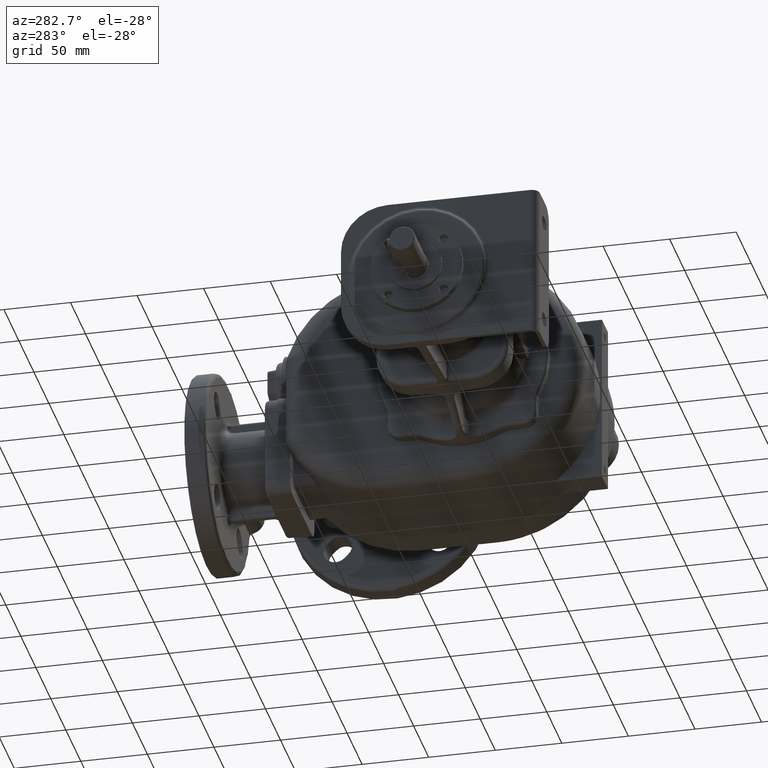
[diagram: clean part render]
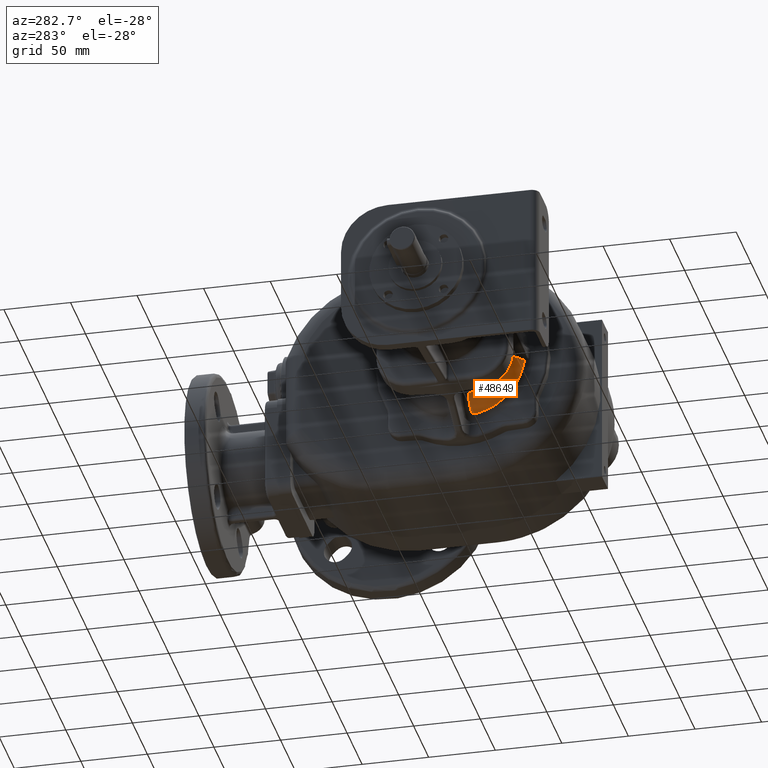
[diagram: same view with one face highlighted and labeled with its STEP entity id]
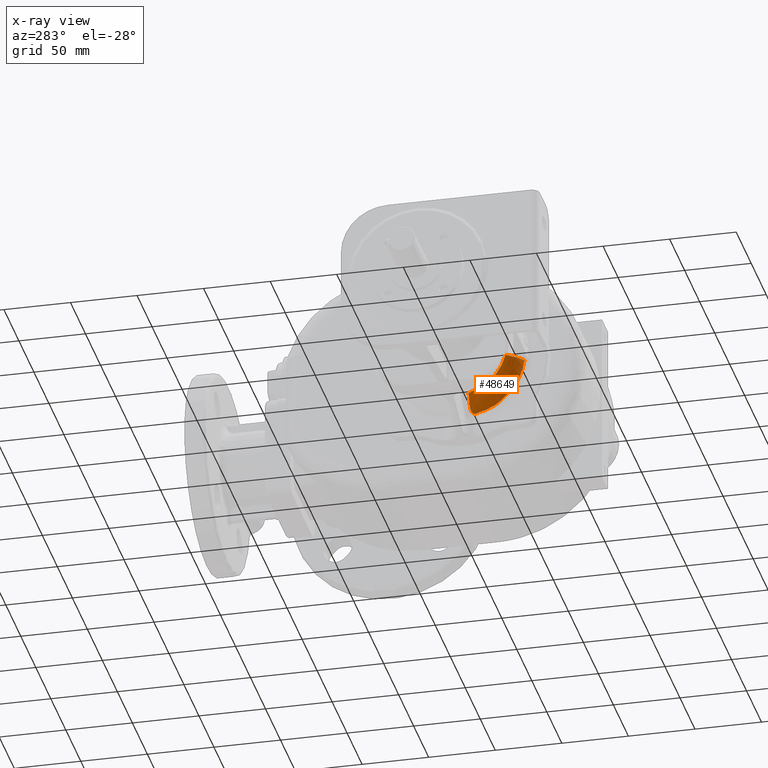
[diagram: x-ray of the same camera — body ghosted, the highlighted face saturated]
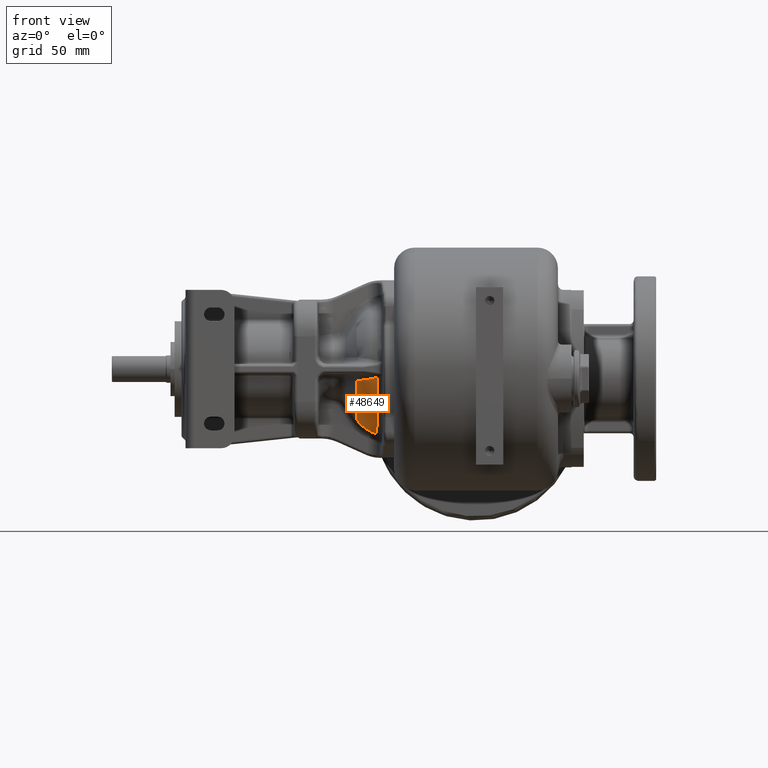
[diagram: same view with one face highlighted and labeled with its STEP entity id]
A machine part, auxiliary view. The second image highlights one B-rep face of the part: STEP entity #48649.
The next image is the same camera in x-ray: the body ghosted, the highlighted face saturated — about 0% of this face is hidden behind the body in this view.
A second angle (front view) of the same face is appended — the face is thin or edge-on in the first view.
In plain terms, the highlighted face is a SurfaceOfRevolution surface.
Its self-contained STEP definition (entity closure, byte-faithful):
#16620=CARTESIAN_POINT('',(-9.753337027059E1,5.279535384912E1,
-8.561780216402E0));
#16631=CARTESIAN_POINT('',(-9.753339102798E1,9.E1,0.E0));
#16632=DIRECTION('',(1.E0,0.E0,0.E0));
#16633=DIRECTION('',(0.E0,-9.745293702970E-1,-2.242599082060E-1));
#16634=AXIS2_PLACEMENT_3D('',#16631,#16632,#16633);
#16653=CARTESIAN_POINT('',(-8.240648749046E1,4.188277130022E1,
-6.272437762217E0));
#16654=CARTESIAN_POINT('',(-8.278824821312E1,4.201941767986E1,
-6.354853286630E0));
#16655=CARTESIAN_POINT('',(-8.353397313513E1,4.229723132439E1,
-6.508450347368E0));
#16656=CARTESIAN_POINT('',(-8.459349114745E1,4.272352786311E1,
-6.716669602793E0));
#16657=CARTESIAN_POINT('',(-8.560787527864E1,4.316315131894E1,
-6.905870031094E0));
#16658=CARTESIAN_POINT('',(-8.658354201662E1,4.361843027517E1,
-7.078695747106E0));
#16659=CARTESIAN_POINT('',(-8.750870014157E1,4.408314349898E1,
-7.235822248015E0));
#16660=CARTESIAN_POINT('',(-8.838252261883E1,4.455448400631E1,
-7.377879699600E0));
#16661=CARTESIAN_POINT('',(-8.921653288702E1,4.503687897089E1,
-7.507946388847E0));
#16662=CARTESIAN_POINT('',(-9.001113195195E1,4.552931595685E1,
-7.627354377668E0));
#16663=CARTESIAN_POINT('',(-9.076832226161E1,4.603140779126E1,
-7.737144168651E0));
#16664=CARTESIAN_POINT('',(-9.149415625367E1,4.654586272315E1,
-7.838696832985E0));
#16665=CARTESIAN_POINT('',(-9.218806263532E1,4.707127670473E1,
-7.932679037803E0));
#16666=CARTESIAN_POINT('',(-9.284826476313E1,4.760465709951E1,
-8.019478834646E0));
#16667=CARTESIAN_POINT('',(-9.348946949329E1,4.815742299319E1,
-8.101455372868E0));
#16668=CARTESIAN_POINT('',(-9.409796536992E1,4.871808519303E1,
-8.177112478868E0));
#16669=CARTESIAN_POINT('',(-9.463954592913E1,4.925012567942E1,
-8.242855100437E0));
#16670=CARTESIAN_POINT('',(-9.511141903536E1,4.974169658331E1,
-8.298973981790E0));
#16671=CARTESIAN_POINT('',(-9.551325751669E1,5.018305728147E1,
-8.345824487718E0));
#16672=CARTESIAN_POINT('',(-9.585548844493E1,5.057703167622E1,
-8.385057176971E0));
#16673=CARTESIAN_POINT('',(-9.614596363602E1,5.092536977790E1,
-8.417426579600E0));
#16674=CARTESIAN_POINT('',(-9.640057009326E1,5.124174914248E1,
-8.445138067714E0));
#16675=CARTESIAN_POINT('',(-9.663492953903E1,5.154256490195E1,
-8.469958788852E0));
#16676=CARTESIAN_POINT('',(-9.686515287047E1,5.184755900315E1,
-8.493512895767E0));
#16677=CARTESIAN_POINT('',(-9.709381799129E1,5.216061862510E1,
-8.516537445211E0));
#16678=CARTESIAN_POINT('',(-9.731776430488E1,5.247768032867E1,
-8.538998479701E0));
#16679=CARTESIAN_POINT('',(-9.746219433563E1,5.268932395339E1,
-8.554238049824E0));
#16680=CARTESIAN_POINT('',(-9.753337027059E1,5.279535384912E1,
-8.561780216402E0));
#16682=CARTESIAN_POINT('',(-8.240649223943E1,9.E1,0.E0));
#16683=DIRECTION('',(-1.E0,0.E0,0.E0));
#16684=DIRECTION('',(0.E0,-8.661620173E-1,-4.997633037617E-1));
#16685=AXIS2_PLACEMENT_3D('',#16682,#16683,#16684);
#16687=CARTESIAN_POINT('',(-8.241088119762E1,4.838884719209E1,
-2.495966978502E1));
#16688=CARTESIAN_POINT('',(-8.240990628059E1,4.834147571371E1,
-2.488131563265E1));
#16689=CARTESIAN_POINT('',(-8.240828131381E1,4.824728981401E1,
-2.472432157308E1));
#16690=CARTESIAN_POINT('',(-8.240681763446E1,4.810767080644E1,
-2.448795839646E1));
#16691=CARTESIAN_POINT('',(-8.240649234959E1,4.801573491044E1,
-2.432986685024E1));
#16692=CARTESIAN_POINT('',(-8.240649233172E1,4.797005077876E1,
-2.425068966081E1));
#16694=CARTESIAN_POINT('',(-8.247285667231E1,5.259241664170E1,
-3.087349212103E1));
#16695=CARTESIAN_POINT('',(-8.247017927443E1,5.233523070577E1,
-3.056325857637E1));
#16696=CARTESIAN_POINT('',(-8.246460228415E1,5.182842755241E1,
-2.993629651384E1));
#16697=CARTESIAN_POINT('',(-8.245551968453E1,5.109139693621E1,
-2.897691097353E1));
#16698=CARTESIAN_POINT('',(-8.244567013749E1,5.037803835976E1,
-2.799919835276E1));
#16699=CARTESIAN_POINT('',(-8.243500316826E1,4.968880728381E1,
-2.700375336226E1));
#16700=CARTESIAN_POINT('',(-8.242347128243E1,4.902416007890E1,
-2.599120339598E1));
#16701=CARTESIAN_POINT('',(-8.241518144792E1,4.859778974903E1,
-2.530526810810E1));
#16702=CARTESIAN_POINT('',(-8.241088119762E1,4.838884719209E1,
-2.495966978502E1));
#16704=CARTESIAN_POINT('',(-8.247481188181E1,5.908444235778E1,
-3.737199101076E1));
#16705=CARTESIAN_POINT('',(-8.247747680362E1,5.874613826511E1,
-3.709099493864E1));
#16706=CARTESIAN_POINT('',(-8.248169685975E1,5.807783624213E1,
-3.652081255682E1));
#16707=CARTESIAN_POINT('',(-8.248554519074E1,5.710164555709E1,
-3.564220808523E1));
#16708=CARTESIAN_POINT('',(-8.248725697936E1,5.615023231367E1,
-3.473911765539E1));
#16709=CARTESIAN_POINT('',(-8.248702621300E1,5.522375054857E1,
-3.381172922865E1));
#16710=CARTESIAN_POINT('',(-8.248483431045E1,5.432139242427E1,
-3.285922667018E1));
#16711=CARTESIAN_POINT('',(-8.248044280068E1,5.344331809218E1,
-3.188171964115E1));
#16712=CARTESIAN_POINT('',(-8.247578115532E1,5.287334441925E1,
-3.121236439717E1));
#16713=CARTESIAN_POINT('',(-8.247285667231E1,5.259241664170E1,
-3.087349212103E1));
#16715=CARTESIAN_POINT('',(-8.243995186791E1,6.308424432643E1,
-4.036199528801E1));
#16716=CARTESIAN_POINT('',(-8.244325149823E1,6.273838276505E1,
-4.013005310834E1));
#16717=CARTESIAN_POINT('',(-8.244965141354E1,6.205263229843E1,
-3.965733917180E1));
#16718=CARTESIAN_POINT('',(-8.245865116567E1,6.104257035674E1,
-3.892223375511E1));
#16719=CARTESIAN_POINT('',(-8.246706277712E1,6.005178567309E1,
-3.816161760263E1));
#16720=CARTESIAN_POINT('',(-8.247228989850E1,5.940460100689E1,
-3.763791534723E1));
#16721=CARTESIAN_POINT('',(-8.247481188181E1,5.908444235778E1,
-3.737199101076E1));
#16723=CARTESIAN_POINT('',(-8.246986283721E1,6.419869242553E1,
-4.107174034441E1));
#16724=CARTESIAN_POINT('',(-8.246204741153E1,6.407241387446E1,
-4.099544728572E1));
#16725=CARTESIAN_POINT('',(-8.244942549709E1,6.382146652243E1,
-4.084110962633E1));
#16726=CARTESIAN_POINT('',(-8.243947228596E1,6.344982485230E1,
-4.060439036196E1));
#16727=CARTESIAN_POINT('',(-8.243880329218E1,6.320553273330E1,
-4.044333052832E1));
#16728=CARTESIAN_POINT('',(-8.243995186791E1,6.308424432643E1,
-4.036199528801E1));
#16730=CARTESIAN_POINT('',(-8.324562045778E1,7.769874610355E1,
-4.664606138933E1));
#16731=CARTESIAN_POINT('',(-8.322247908771E1,7.726667861018E1,
-4.654046724858E1));
#16732=CARTESIAN_POINT('',(-8.317602118770E1,7.640574931877E1,
-4.631741659972E1));
#16733=CARTESIAN_POINT('',(-8.310610485205E1,7.512454174400E1,
-4.594739480891E1));
#16734=CARTESIAN_POINT('',(-8.303587399401E1,7.385439444347E1,
-4.554224929375E1));
#16735=CARTESIAN_POINT('',(-8.296541139141E1,7.259606616023E1,
-4.510223367803E1));
#16736=CARTESIAN_POINT('',(-8.289476528412E1,7.135034517179E1,
-4.462762665372E1));
#16737=CARTESIAN_POINT('',(-8.282399362724E1,7.011799316983E1,
-4.411869949131E1));
#16738=CARTESIAN_POINT('',(-8.275312264832E1,6.890011197136E1,
-4.357590467413E1));
#16739=CARTESIAN_POINT('',(-8.268220126241E1,6.769782475160E1,
-4.299975420976E1));
#16740=CARTESIAN_POINT('',(-8.261129028171E1,6.651223269038E1,
-4.239080108620E1));
#16741=CARTESIAN_POINT('',(-8.254046587389E1,6.534439042304E1,
-4.174963169768E1));
#16742=CARTESIAN_POINT('',(-8.249336566798E1,6.457841342910E1,
-4.130114699990E1));
#16743=CARTESIAN_POINT('',(-8.246986283721E1,6.419869242553E1,
-4.107174034441E1));
#16745=CARTESIAN_POINT('',(-8.658996781544E1,8.106394003412E1,
-4.605096699252E1));
#16746=CARTESIAN_POINT('',(-8.653425647681E1,8.106420696144E1,
-4.607671767529E1));
#16747=CARTESIAN_POINT('',(-8.642312695272E1,8.106170727342E1,
-4.612714572851E1));
#16748=CARTESIAN_POINT('',(-8.625712475843E1,8.104903112020E1,
-4.619972117228E1));
#16749=CARTESIAN_POINT('',(-8.609250577147E1,8.102760872506E1,
-4.626899101706E1));
#16750=CARTESIAN_POINT('',(-8.592969988351E1,8.099762109624E1,
-4.633483988292E1));
#16751=CARTESIAN_POINT('',(-8.576917697851E1,8.095925312052E1,
-4.639713856101E1));
#16752=CARTESIAN_POINT('',(-8.561138261447E1,8.091267392743E1,
-4.645576914483E1));
#16753=CARTESIAN_POINT('',(-8.545656929825E1,8.085808680212E1,
-4.651070441107E1));
#16754=CARTESIAN_POINT('',(-8.530492729925E1,8.079573011762E1,
-4.656194827604E1));
#16755=CARTESIAN_POINT('',(-8.515669999544E1,8.072580970226E1,
-4.660947384409E1));
#16756=CARTESIAN_POINT('',(-8.501219252310E1,8.064855001278E1,
-4.665323149083E1));
#16757=CARTESIAN_POINT('',(-8.487168925132E1,8.056414755727E1,
-4.669317423478E1));
#16758=CARTESIAN_POINT('',(-8.473543364397E1,8.047278601645E1,
-4.672926795817E1));
#16759=CARTESIAN_POINT('',(-8.460363699167E1,8.037471535319E1,
-4.676150310306E1));
#16760=CARTESIAN_POINT('',(-8.447654039714E1,8.027016915310E1,
-4.678985218481E1));
#16761=CARTESIAN_POINT('',(-8.435441887256E1,8.015941052474E1,
-4.681427991430E1));
#16762=CARTESIAN_POINT('',(-8.423755724510E1,8.004270592930E1,
-4.683474800338E1));
#16763=CARTESIAN_POINT('',(-8.412611628687E1,7.992014506441E1,
-4.685122749637E1));
#16764=CARTESIAN_POINT('',(-8.402017520958E1,7.979180459036E1,
-4.686371380421E1));
#16765=CARTESIAN_POINT('',(-8.391984326286E1,7.965780959742E1,
-4.687219692433E1));
#16766=CARTESIAN_POINT('',(-8.382540500776E1,7.951844438448E1,
-4.687663338473E1));
#16767=CARTESIAN_POINT('',(-8.373714945645E1,7.937400869293E1,
-4.687698187338E1));
#16768=CARTESIAN_POINT('',(-8.365532121556E1,7.922470744908E1,
-4.687319582532E1));
#16769=CARTESIAN_POINT('',(-8.358015647903E1,7.907067200330E1,
-4.686521289045E1));
#16770=CARTESIAN_POINT('',(-8.351181358763E1,7.891210682277E1,
-4.685301360084E1));
#16771=CARTESIAN_POINT('',(-8.345047358128E1,7.874918917316E1,
-4.683656123328E1));
#16772=CARTESIAN_POINT('',(-8.339635238988E1,7.858208321329E1,
-4.681580028391E1));
#16773=CARTESIAN_POINT('',(-8.334973485039E1,7.841107131774E1,
-4.679067631924E1));
#16774=CARTESIAN_POINT('',(-8.331099290019E1,7.823669308352E1,
-4.676116689814E1));
#16775=CARTESIAN_POINT('',(-8.328039503033E1,7.805949450547E1,
-4.672729212930E1));
#16776=CARTESIAN_POINT('',(-8.325812193012E1,7.788003849862E1,
-4.668910819805E1));
#16777=CARTESIAN_POINT('',(-8.324882226982E1,7.775932432048E1,
-4.666088173801E1));
#16778=CARTESIAN_POINT('',(-8.324562045778E1,7.769874610355E1,
-4.664606138933E1));
#16780=CARTESIAN_POINT('',(-9.753339047591E1,8.047408518737E1,
-3.696950390604E1));
#16781=CARTESIAN_POINT('',(-9.739341855808E1,8.049491291926E1,
-3.718128015977E1));
#16782=CARTESIAN_POINT('',(-9.710872582415E1,8.053525161780E1,
-3.759763110749E1));
#16783=CARTESIAN_POINT('',(-9.666919975814E1,8.059195946320E1,
-3.819907747851E1));
#16784=CARTESIAN_POINT('',(-9.621552202854E1,8.064526643843E1,
-3.878075942265E1));
#16785=CARTESIAN_POINT('',(-9.574651968938E1,8.069555161857E1,
-3.934452072997E1));
#16786=CARTESIAN_POINT('',(-9.526036342196E1,8.074266883215E1,
-3.989225546199E1));
#16787=CARTESIAN_POINT('',(-9.475517571622E1,8.078600960170E1,
-4.042611736433E1));
#16788=CARTESIAN_POINT('',(-9.422906400354E1,8.082607464116E1,
-4.094812310539E1));
#16789=CARTESIAN_POINT('',(-9.367967413667E1,8.086298788758E1,
-4.146011271742E1));
#16790=CARTESIAN_POINT('',(-9.310508917675E1,8.089685995926E1,
-4.196304815157E1));
#16791=CARTESIAN_POINT('',(-9.250492288672E1,8.092768060919E1,
-4.245634136361E1));
#16792=CARTESIAN_POINT('',(-9.187854283576E1,8.095545444876E1,
-4.293959345568E1));
#16793=CARTESIAN_POINT('',(-9.122557323442E1,8.098016973179E1,
-4.341218322767E1));
#16794=CARTESIAN_POINT('',(-9.054359319315E1,8.100194935846E1,
-4.387483840149E1));
#16795=CARTESIAN_POINT('',(-8.982983821708E1,8.102075278790E1,
-4.432808877132E1));
#16796=CARTESIAN_POINT('',(-8.908133041520E1,8.103645772451E1,
-4.477239267688E1));
#16797=CARTESIAN_POINT('',(-8.829502323138E1,8.104902104742E1,
-4.520798551998E1));
#16798=CARTESIAN_POINT('',(-8.746822145273E1,8.105839489159E1,
-4.563472148956E1));
#16799=CARTESIAN_POINT('',(-8.688757227995E1,8.106246764469E1,
-4.591339862627E1));
#16800=CARTESIAN_POINT('',(-8.658996781544E1,8.106394003412E1,
-4.605096699252E1));
#16997=CARTESIAN_POINT('',(-8.324562045778E1,7.769874610355E1,
-4.664606138933E1));
#25059=VERTEX_POINT('',#16780);
#25060=VERTEX_POINT('',#16800);
#25112=VERTEX_POINT('',#16620);
#25211=VERTEX_POINT('',#16653);
#25236=VERTEX_POINT('',#16687);
#25237=VERTEX_POINT('',#16692);
#25239=VERTEX_POINT('',#16694);
#25240=VERTEX_POINT('',#16704);
#25241=VERTEX_POINT('',#16715);
#25243=VERTEX_POINT('',#16723);
#25256=VERTEX_POINT('',#16997);
#48618=CARTESIAN_POINT('',(-8.223170018458E1,1.385811839793E2,0.E0));
#48619=CARTESIAN_POINT('',(-8.308148477048E1,1.383066904785E2,0.E0));
#48620=CARTESIAN_POINT('',(-8.600949741420E1,1.372689023357E2,0.E0));
#48621=CARTESIAN_POINT('',(-9.074948562102E1,1.349544292108E2,0.E0));
#48622=CARTESIAN_POINT('',(-9.494129126694E1,1.315235548072E2,0.E0));
#48623=CARTESIAN_POINT('',(-9.700052590745E1,1.289448811122E2,0.E0));
#48624=CARTESIAN_POINT('',(-9.760480255226E1,1.280746375241E2,0.E0));
#48625=CARTESIAN_POINT('',(-9.764022783434E1,1.280231906282E2,0.E0));
#48627=CARTESIAN_POINT('',(-7.E1,9.E1,0.E0));
#48628=DIRECTION('',(1.E0,0.E0,0.E0));
#48629=AXIS1_PLACEMENT('',#48627,#48628);
#48630=SURFACE_OF_REVOLUTION('',#48626,#48629);
#48631=ORIENTED_EDGE('',*,*,#37393,.F.);
#48632=ORIENTED_EDGE('',*,*,#37647,.F.);
#48634=ORIENTED_EDGE('',*,*,#48633,.F.);
#48635=ORIENTED_EDGE('',*,*,#39067,.F.);
#48636=ORIENTED_EDGE('',*,*,#39146,.F.);
#48637=ORIENTED_EDGE('',*,*,#39189,.F.);
#48639=ORIENTED_EDGE('',*,*,#48638,.F.);
#48641=ORIENTED_EDGE('',*,*,#48640,.F.);
#48643=ORIENTED_EDGE('',*,*,#48642,.F.);
#48645=ORIENTED_EDGE('',*,*,#48644,.F.);
#48646=ORIENTED_EDGE('',*,*,#48609,.F.);
#48647=EDGE_LOOP('',(#48631,#48632,#48634,#48635,#48636,#48637,#48639,#48641,
#48643,#48645,#48646));
#48648=FACE_OUTER_BOUND('',#48647,.F.);
#48649=ADVANCED_FACE('',(#48648),#48630,.F.);
#16635=CIRCLE('',#16634,3.817705085355E1);
#16681=B_SPLINE_CURVE_WITH_KNOTS('',3,(#16653,#16654,#16655,#16656,#16657,
#16658,#16659,#16660,#16661,#16662,#16663,#16664,#16665,#16666,#16667,#16668,
#16669,#16670,#16671,#16672,#16673,#16674,#16675,#16676,#16677,#16678,#16679,
#16680),.UNSPECIFIED.,.F.,.F.,(4,1,1,1,1,1,1,1,1,1,1,1,1,1,1,1,1,1,1,1,1,1,1,1,
1,4),(0.E0,4.E-2,8.E-2,1.2E-1,1.6E-1,2.E-1,2.4E-1,2.8E-1,3.2E-1,3.6E-1,4.E-1,
4.4E-1,4.8E-1,5.2E-1,5.6E-1,6.E-1,6.4E-1,6.8E-1,7.2E-1,7.6E-1,8.E-1,8.4E-1,
8.8E-1,9.2E-1,9.6E-1,1.E0),.UNSPECIFIED.);
#16686=CIRCLE('',#16685,4.852435041807E1);
#16693=B_SPLINE_CURVE_WITH_KNOTS('',3,(#16687,#16688,#16689,#16690,#16691,
#16692),.UNSPECIFIED.,.F.,.F.,(4,1,1,4),(0.E0,3.333333333333E-1,
6.666666666667E-1,1.E0),.UNSPECIFIED.);
#16703=B_SPLINE_CURVE_WITH_KNOTS('',3,(#16694,#16695,#16696,#16697,#16698,
#16699,#16700,#16701,#16702),.UNSPECIFIED.,.F.,.F.,(4,1,1,1,1,1,4),(0.E0,
1.666666666667E-1,3.333333333333E-1,5.E-1,6.666666666667E-1,8.333333333333E-1,
1.E0),.UNSPECIFIED.);
#16714=B_SPLINE_CURVE_WITH_KNOTS('',3,(#16704,#16705,#16706,#16707,#16708,
#16709,#16710,#16711,#16712,#16713),.UNSPECIFIED.,.F.,.F.,(4,1,1,1,1,1,1,4),(
0.E0,1.428571428571E-1,2.857142857143E-1,4.285714285714E-1,5.714285714286E-1,
7.142857142857E-1,8.571428571429E-1,1.E0),.UNSPECIFIED.);
#16722=B_SPLINE_CURVE_WITH_KNOTS('',3,(#16715,#16716,#16717,#16718,#16719,
#16720,#16721),.UNSPECIFIED.,.F.,.F.,(4,1,1,1,4),(0.E0,2.5E-1,5.E-1,7.5E-1,
1.E0),.UNSPECIFIED.);
#16729=B_SPLINE_CURVE_WITH_KNOTS('',3,(#16723,#16724,#16725,#16726,#16727,
#16728),.UNSPECIFIED.,.F.,.F.,(4,1,1,4),(0.E0,3.333333333333E-1,
6.666666666667E-1,1.E0),.UNSPECIFIED.);
#16744=B_SPLINE_CURVE_WITH_KNOTS('',3,(#16730,#16731,#16732,#16733,#16734,
#16735,#16736,#16737,#16738,#16739,#16740,#16741,#16742,#16743),.UNSPECIFIED.,
.F.,.F.,(4,1,1,1,1,1,1,1,1,1,1,4),(0.E0,9.090909090909E-2,1.818181818182E-1,
2.727272727273E-1,3.636363636364E-1,4.545454545455E-1,5.454545454545E-1,
6.363636363636E-1,7.272727272727E-1,8.181818181818E-1,9.090909090909E-1,1.E0),
.UNSPECIFIED.);
#16779=B_SPLINE_CURVE_WITH_KNOTS('',3,(#16745,#16746,#16747,#16748,#16749,
#16750,#16751,#16752,#16753,#16754,#16755,#16756,#16757,#16758,#16759,#16760,
#16761,#16762,#16763,#16764,#16765,#16766,#16767,#16768,#16769,#16770,#16771,
#16772,#16773,#16774,#16775,#16776,#16777,#16778),.UNSPECIFIED.,.F.,.F.,(4,1,1,
1,1,1,1,1,1,1,1,1,1,1,1,1,1,1,1,1,1,1,1,1,1,1,1,1,1,1,1,4),(0.E0,
3.225806451613E-2,6.451612903226E-2,9.677419354839E-2,1.290322580645E-1,
1.612903225806E-1,1.935483870968E-1,2.258064516129E-1,2.580645161290E-1,
2.903225806452E-1,3.225806451613E-1,3.548387096774E-1,3.870967741935E-1,
4.193548387097E-1,4.516129032258E-1,4.838709677419E-1,5.161290322581E-1,
5.483870967742E-1,5.806451612903E-1,6.129032258065E-1,6.451612903226E-1,
6.774193548387E-1,7.096774193548E-1,7.419354838710E-1,7.741935483871E-1,
8.064516129032E-1,8.387096774194E-1,8.709677419355E-1,9.032258064516E-1,
9.354838709677E-1,9.677419354839E-1,1.E0),.UNSPECIFIED.);
#16801=B_SPLINE_CURVE_WITH_KNOTS('',3,(#16780,#16781,#16782,#16783,#16784,
#16785,#16786,#16787,#16788,#16789,#16790,#16791,#16792,#16793,#16794,#16795,
#16796,#16797,#16798,#16799,#16800),.UNSPECIFIED.,.F.,.F.,(4,1,1,1,1,1,1,1,1,1,
1,1,1,1,1,1,1,1,4),(0.E0,5.555555555556E-2,1.111111111111E-1,1.666666666667E-1,
2.222222222222E-1,2.777777777778E-1,3.333333333333E-1,3.888888888889E-1,
4.444444444444E-1,5.E-1,5.555555555556E-1,6.111111111111E-1,6.666666666667E-1,
7.222222222222E-1,7.777777777778E-1,8.333333333333E-1,8.888888888889E-1,
9.444444444444E-1,1.E0),.UNSPECIFIED.);
#37393=EDGE_CURVE('',#25211,#25112,#16681,.T.);
#37647=EDGE_CURVE('',#25237,#25211,#16686,.T.);
#39067=EDGE_CURVE('',#25239,#25236,#16703,.T.);
#39146=EDGE_CURVE('',#25240,#25239,#16714,.T.);
#39189=EDGE_CURVE('',#25241,#25240,#16722,.T.);
#48609=EDGE_CURVE('',#25112,#25059,#16635,.T.);
#48626=B_SPLINE_CURVE_WITH_KNOTS('',3,(#48618,#48619,#48620,#48621,#48622,
#48623,#48624,#48625),.UNSPECIFIED.,.F.,.F.,(4,1,1,1,1,4),(0.E0,
1.396137826879E-1,4.880234104768E-1,8.364330382657E-1,9.903602848622E-1,1.E0),
.UNSPECIFIED.);
#48633=EDGE_CURVE('',#25236,#25237,#16693,.T.);
#48638=EDGE_CURVE('',#25243,#25241,#16729,.T.);
#48640=EDGE_CURVE('',#25256,#25243,#16744,.T.);
#48642=EDGE_CURVE('',#25060,#25256,#16779,.T.);
#48644=EDGE_CURVE('',#25059,#25060,#16801,.T.);